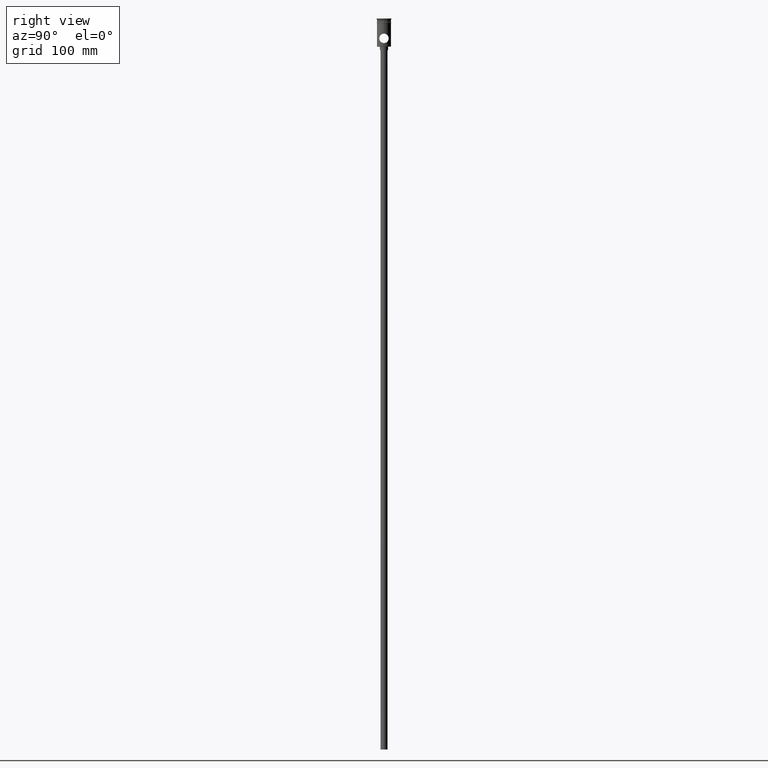
[diagram: clean part render]
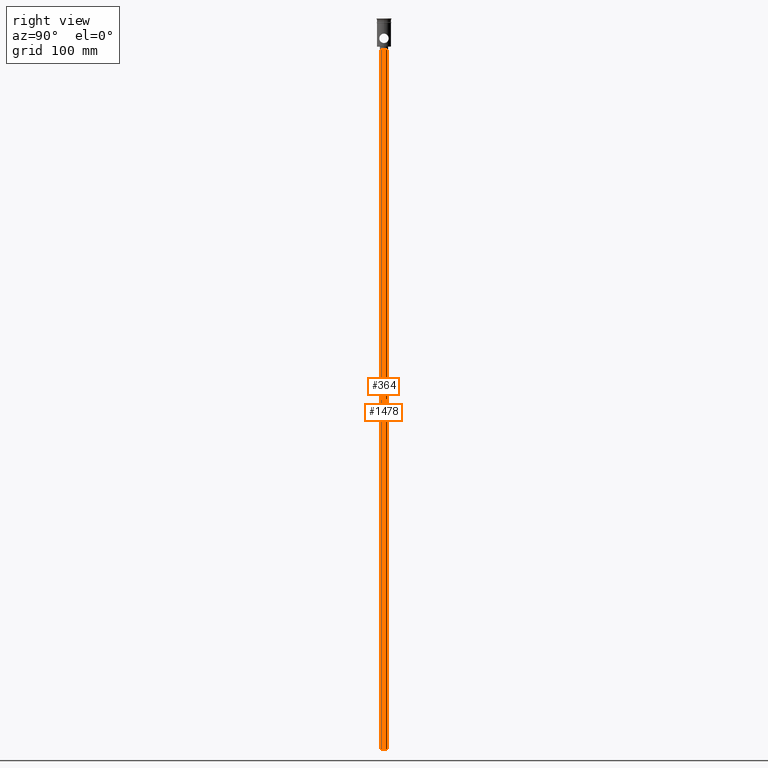
[diagram: same view with one multi-face feature highlighted, each face labeled with its STEP entity id]
A machine part, right view. The highlighted faces form ONE feature: a constant-radius fillet chain: 2 tangent blend faces with common blend radius 3 mm. The faces share edges in the B-rep.
Their STEP definitions:
[1] entity #1478 (Cylinder):
#78 = ORIENTED_EDGE ( 'NONE', *, *, #1005, .F. ) ;
#116 = VERTEX_POINT ( 'NONE', #224 ) ;
#124 = EDGE_CURVE ( 'NONE', #1227, #116, #1018, .T. ) ;
#209 = CYLINDRICAL_SURFACE ( 'NONE', #1106, 3.000000000000000444 ) ;
#224 = CARTESIAN_POINT ( 'NONE',  ( -3.000000000000000444, 3.673940397442060361E-16, -27.00000000000000000 ) ) ;
#252 = CARTESIAN_POINT ( 'NONE',  ( -3.000000000000000444, 3.673940397442060361E-16, -624.0000000000000000 ) ) ;
#291 = DIRECTION ( 'NONE',  ( -0.000000000000000000, -0.000000000000000000, 1.000000000000000000 ) ) ;
#300 = VECTOR ( 'NONE', #456, 1000.000000000000000 ) ;
#306 = DIRECTION ( 'NONE',  ( 1.000000000000000000, 0.000000000000000000, 0.000000000000000000 ) ) ;
#317 = EDGE_CURVE ( 'NONE', #1227, #602, #1259, .T. ) ;
#329 = CARTESIAN_POINT ( 'NONE',  ( 0.000000000000000000, 0.000000000000000000, -624.0000000000000000 ) ) ;
#343 = DIRECTION ( 'NONE',  ( -1.000000000000000000, 0.000000000000000000, 0.000000000000000000 ) ) ;
#356 = CARTESIAN_POINT ( 'NONE',  ( 3.000000000000000444, 0.000000000000000000, -624.0000000000000000 ) ) ;
#408 = CIRCLE ( 'NONE', #1395, 3.000000000000000444 ) ;
#436 = EDGE_CURVE ( 'NONE', #116, #557, #408, .T. ) ;
#456 = DIRECTION ( 'NONE',  ( -0.000000000000000000, -0.000000000000000000, 1.000000000000000000 ) ) ;
#551 = CARTESIAN_POINT ( 'NONE',  ( 0.000000000000000000, 0.000000000000000000, -624.0000000000000000 ) ) ;
#557 = VERTEX_POINT ( 'NONE', #1466 ) ;
#602 = VERTEX_POINT ( 'NONE', #356 ) ;
#612 = ORIENTED_EDGE ( 'NONE', *, *, #436, .T. ) ;
#631 = ORIENTED_EDGE ( 'NONE', *, *, #317, .F. ) ;
#634 = CARTESIAN_POINT ( 'NONE',  ( 3.000000000000000444, 0.000000000000000000, -624.0000000000000000 ) ) ;
#787 = CARTESIAN_POINT ( 'NONE',  ( -3.000000000000000444, 3.673940397442060361E-16, -624.0000000000000000 ) ) ;
#807 = CARTESIAN_POINT ( 'NONE',  ( 0.000000000000000000, 0.000000000000000000, -27.00000000000000000 ) ) ;
#896 = DIRECTION ( 'NONE',  ( -1.000000000000000000, 0.000000000000000000, 0.000000000000000000 ) ) ;
#1005 = EDGE_CURVE ( 'NONE', #602, #557, #1411, .T. ) ;
#1014 = DIRECTION ( 'NONE',  ( 0.000000000000000000, 0.000000000000000000, -1.000000000000000000 ) ) ;
#1018 = LINE ( 'NONE', #787, #300 ) ;
#1027 = DIRECTION ( 'NONE',  ( -0.000000000000000000, -0.000000000000000000, 1.000000000000000000 ) ) ;
#1106 = AXIS2_PLACEMENT_3D ( 'NONE', #329, #1027, #306 ) ;
#1165 = AXIS2_PLACEMENT_3D ( 'NONE', #551, #1014, #343 ) ;
#1176 = ORIENTED_EDGE ( 'NONE', *, *, #124, .T. ) ;
#1227 = VERTEX_POINT ( 'NONE', #252 ) ;
#1259 = CIRCLE ( 'NONE', #1165, 3.000000000000000444 ) ;
#1346 = FACE_OUTER_BOUND ( 'NONE', #1374, .T. ) ;
#1353 = DIRECTION ( 'NONE',  ( 0.000000000000000000, 0.000000000000000000, -1.000000000000000000 ) ) ;
#1374 = EDGE_LOOP ( 'NONE', ( #631, #1176, #612, #78 ) ) ;
#1395 = AXIS2_PLACEMENT_3D ( 'NONE', #807, #1353, #896 ) ;
#1411 = LINE ( 'NONE', #634, #1460 ) ;
#1460 = VECTOR ( 'NONE', #291, 1000.000000000000000 ) ;
#1466 = CARTESIAN_POINT ( 'NONE',  ( 3.000000000000000444, 0.000000000000000000, -27.00000000000000000 ) ) ;
#1478 = ADVANCED_FACE ( 'NONE', ( #1346 ), #209, .T. ) ;
[2] entity #364 (Cylinder):
#10 = FACE_OUTER_BOUND ( 'NONE', #1435, .T. ) ;
#56 = DIRECTION ( 'NONE',  ( 0.000000000000000000, 0.000000000000000000, -1.000000000000000000 ) ) ;
#76 = CIRCLE ( 'NONE', #221, 3.000000000000000444 ) ;
#116 = VERTEX_POINT ( 'NONE', #224 ) ;
#124 = EDGE_CURVE ( 'NONE', #1227, #116, #1018, .T. ) ;
#138 = CARTESIAN_POINT ( 'NONE',  ( 0.000000000000000000, 0.000000000000000000, -624.0000000000000000 ) ) ;
#221 = AXIS2_PLACEMENT_3D ( 'NONE', #1199, #863, #393 ) ;
#224 = CARTESIAN_POINT ( 'NONE',  ( -3.000000000000000444, 3.673940397442060361E-16, -27.00000000000000000 ) ) ;
#230 = CYLINDRICAL_SURFACE ( 'NONE', #615, 3.000000000000000444 ) ;
#252 = CARTESIAN_POINT ( 'NONE',  ( -3.000000000000000444, 3.673940397442060361E-16, -624.0000000000000000 ) ) ;
#291 = DIRECTION ( 'NONE',  ( -0.000000000000000000, -0.000000000000000000, 1.000000000000000000 ) ) ;
#300 = VECTOR ( 'NONE', #456, 1000.000000000000000 ) ;
#356 = CARTESIAN_POINT ( 'NONE',  ( 3.000000000000000444, 0.000000000000000000, -624.0000000000000000 ) ) ;
#364 = ADVANCED_FACE ( 'NONE', ( #10 ), #230, .T. ) ;
#393 = DIRECTION ( 'NONE',  ( -1.000000000000000000, 0.000000000000000000, 0.000000000000000000 ) ) ;
#456 = DIRECTION ( 'NONE',  ( -0.000000000000000000, -0.000000000000000000, 1.000000000000000000 ) ) ;
#553 = AXIS2_PLACEMENT_3D ( 'NONE', #1409, #56, #1392 ) ;
#554 = CIRCLE ( 'NONE', #553, 3.000000000000000444 ) ;
#557 = VERTEX_POINT ( 'NONE', #1466 ) ;
#602 = VERTEX_POINT ( 'NONE', #356 ) ;
#615 = AXIS2_PLACEMENT_3D ( 'NONE', #138, #684, #1141 ) ;
#630 = ORIENTED_EDGE ( 'NONE', *, *, #124, .F. ) ;
#634 = CARTESIAN_POINT ( 'NONE',  ( 3.000000000000000444, 0.000000000000000000, -624.0000000000000000 ) ) ;
#680 = ORIENTED_EDGE ( 'NONE', *, *, #1005, .T. ) ;
#684 = DIRECTION ( 'NONE',  ( -0.000000000000000000, -0.000000000000000000, 1.000000000000000000 ) ) ;
#787 = CARTESIAN_POINT ( 'NONE',  ( -3.000000000000000444, 3.673940397442060361E-16, -624.0000000000000000 ) ) ;
#809 = EDGE_CURVE ( 'NONE', #602, #1227, #554, .T. ) ;
#863 = DIRECTION ( 'NONE',  ( 0.000000000000000000, 0.000000000000000000, -1.000000000000000000 ) ) ;
#1005 = EDGE_CURVE ( 'NONE', #602, #557, #1411, .T. ) ;
#1018 = LINE ( 'NONE', #787, #300 ) ;
#1141 = DIRECTION ( 'NONE',  ( 1.000000000000000000, 0.000000000000000000, 0.000000000000000000 ) ) ;
#1199 = CARTESIAN_POINT ( 'NONE',  ( 0.000000000000000000, 0.000000000000000000, -27.00000000000000000 ) ) ;
#1227 = VERTEX_POINT ( 'NONE', #252 ) ;
#1332 = EDGE_CURVE ( 'NONE', #557, #116, #76, .T. ) ;
#1345 = ORIENTED_EDGE ( 'NONE', *, *, #809, .F. ) ;
#1392 = DIRECTION ( 'NONE',  ( -1.000000000000000000, 0.000000000000000000, 0.000000000000000000 ) ) ;
#1409 = CARTESIAN_POINT ( 'NONE',  ( 0.000000000000000000, 0.000000000000000000, -624.0000000000000000 ) ) ;
#1411 = LINE ( 'NONE', #634, #1460 ) ;
#1435 = EDGE_LOOP ( 'NONE', ( #630, #1345, #680, #1465 ) ) ;
#1460 = VECTOR ( 'NONE', #291, 1000.000000000000000 ) ;
#1465 = ORIENTED_EDGE ( 'NONE', *, *, #1332, .T. ) ;
#1466 = CARTESIAN_POINT ( 'NONE',  ( 3.000000000000000444, 0.000000000000000000, -27.00000000000000000 ) ) ;